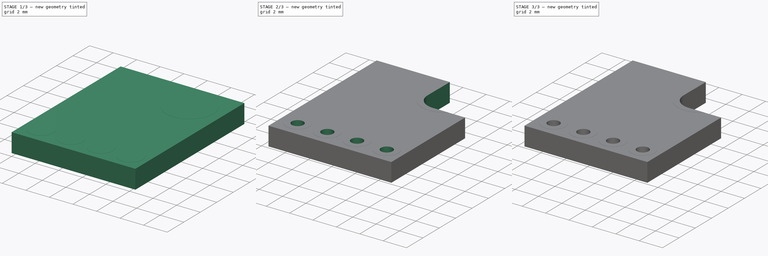
[diagram: build sequence overview — one tinted view per stage of 3, left to right]
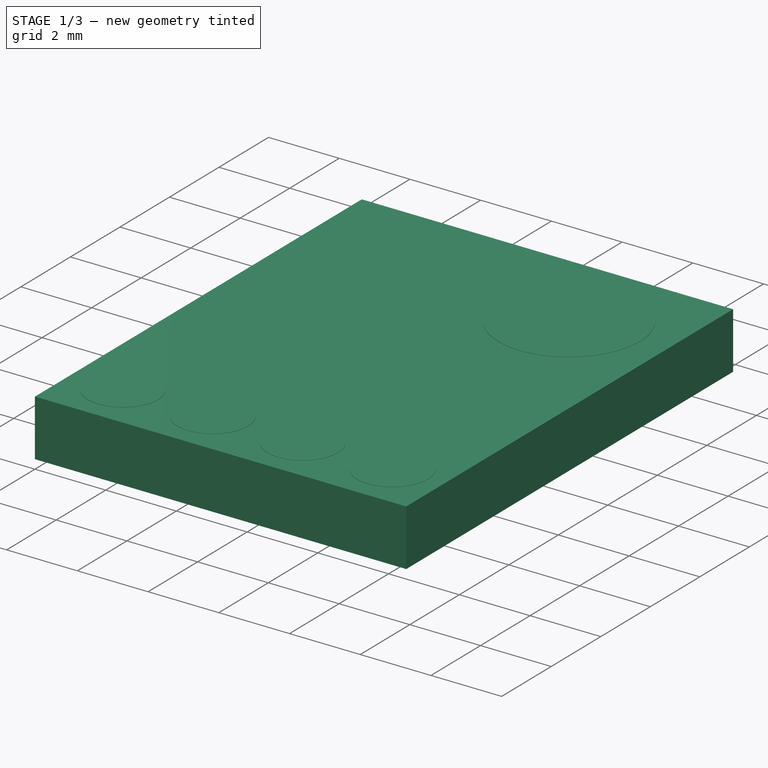
[diagram: stage 1 of 3 — iso view after this stage's code; geometry added in this stage tinted green]
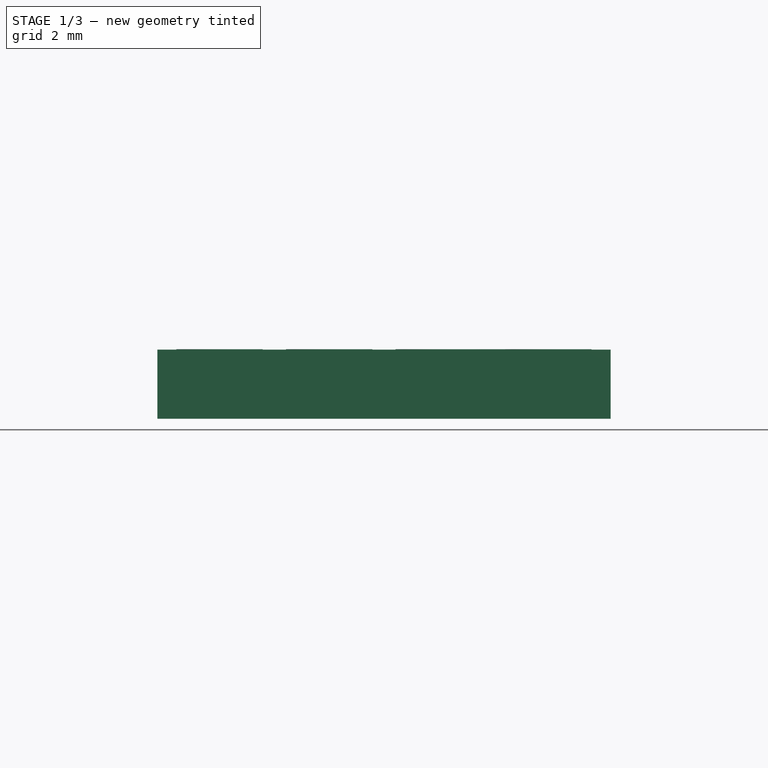
[diagram: stage 1 of 3 — front view after this stage's code; geometry added in this stage tinted green]
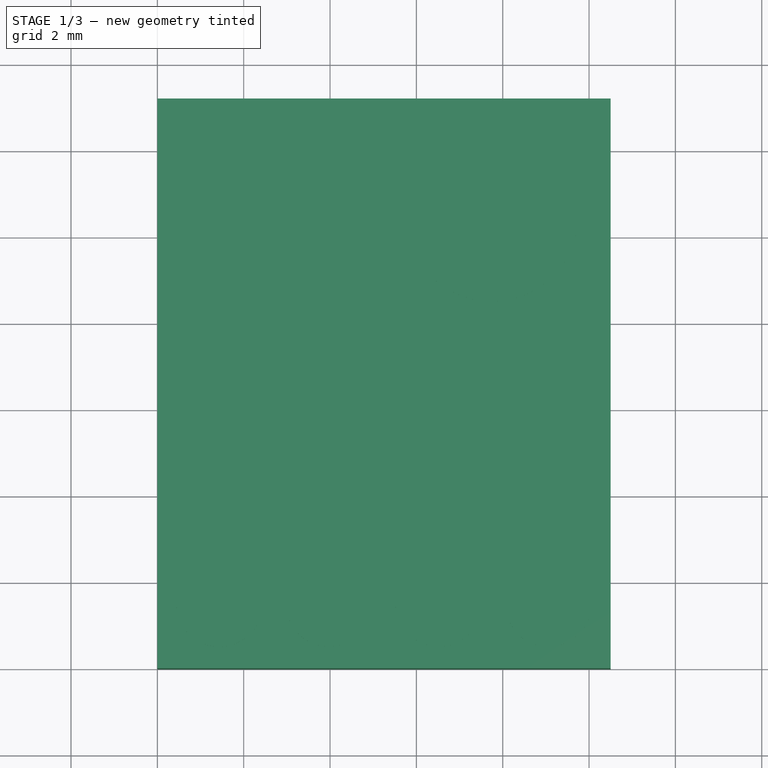
[diagram: stage 1 of 3 — top view after this stage's code; geometry added in this stage tinted green]
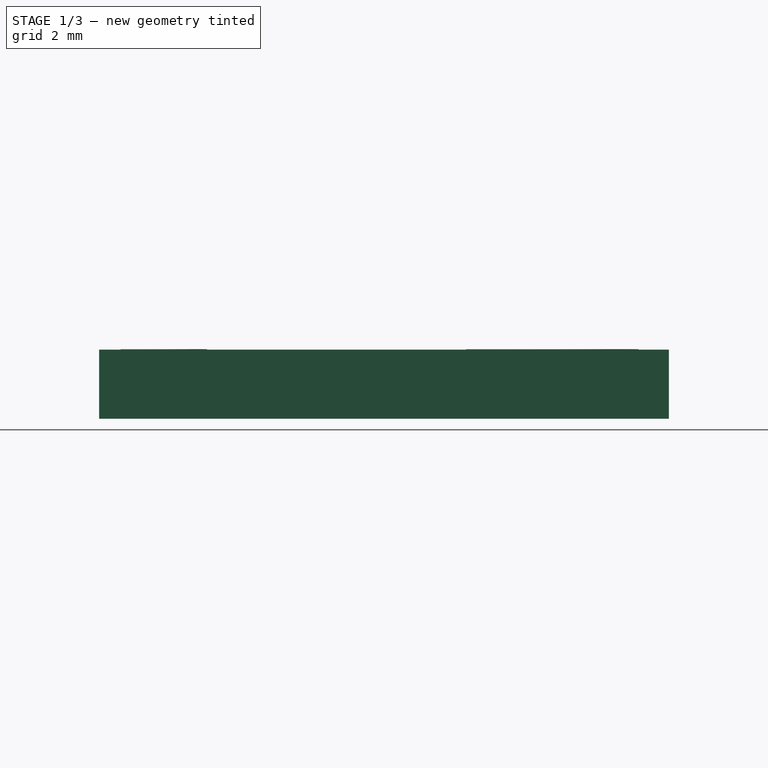
[diagram: stage 1 of 3 — right view after this stage's code; geometry added in this stage tinted green]
FCSTD DOCUMENT  (FreeCAD 0.15R4671 (Git))
Label: BME280_edit
License: All rights reserved
LicenseURL: http://en.wikipedia.org/wiki/All_rights_reserved
objects: Sketcher::SketchObject×3, PartDesign::Pad×2, PartDesign::Fillet×2, Part::Box×1, PartDesign::Pocket×1
note: 12 computed .brp shape members not serialized (recipe doc carries the construction recipe); baked Part::Feature solids carry a one-line shape summary decoded from their .brp

FEATURE [Part::Box] Box  label="Würfel"
  Height = 1.6
  Length = 10.5
  Width = 13.2
FEATURE [Sketcher::SketchObject] Sketch
  Placement = pos=(0,0,1.6) rot=(0,0,1;0rad)
  Support = -> Box [Face6]
  sketch-geometry (5):
    g0: Circle CenterX=1.44 CenterY=1.5 CenterZ=0 NormalX=0 NormalY=0 NormalZ=1 Radius=1
    g1: Circle CenterX=3.98 CenterY=1.5 CenterZ=0 NormalX=0 NormalY=0 NormalZ=1 Radius=1
    g2: Circle CenterX=6.52 CenterY=1.5 CenterZ=0 NormalX=0 NormalY=0 NormalZ=1 Radius=1
    g3: Circle CenterX=9.06 CenterY=1.5 CenterZ=0 NormalX=0 NormalY=0 NormalZ=1 Radius=1
    g4: Circle CenterX=7.75 CenterY=10.5 CenterZ=0 NormalX=0 NormalY=0 NormalZ=1 Radius=2
  constraints (15):
    c: DistanceX(g0) = 1.44
    c: DistanceX(g0,g1) = 2.54
    c: DistanceX(g1,g2) = 2.54
    c: DistanceX(g2,g3) = 2.54
    c: DistanceY(g0) = 1.5
    c: DistanceY(g0,g1) = 0
    c: DistanceY(g1,g2) = 0
    c: DistanceY(g2,g3) = 0
    c: Radius(g0) = 1
    c: Equal(g0,g1)
    c: Equal(g1,g2)
    c: Equal(g2,g3)
    c: DistanceX(g4) = 7.75
    c: DistanceY(g4) = 10.5
    c: Radius(g4) = 2
FEATURE [PartDesign::Pad] Pad
  Length = 0.01
  Length2 = 100
  Sketch = -> Sketch
  Type = 0
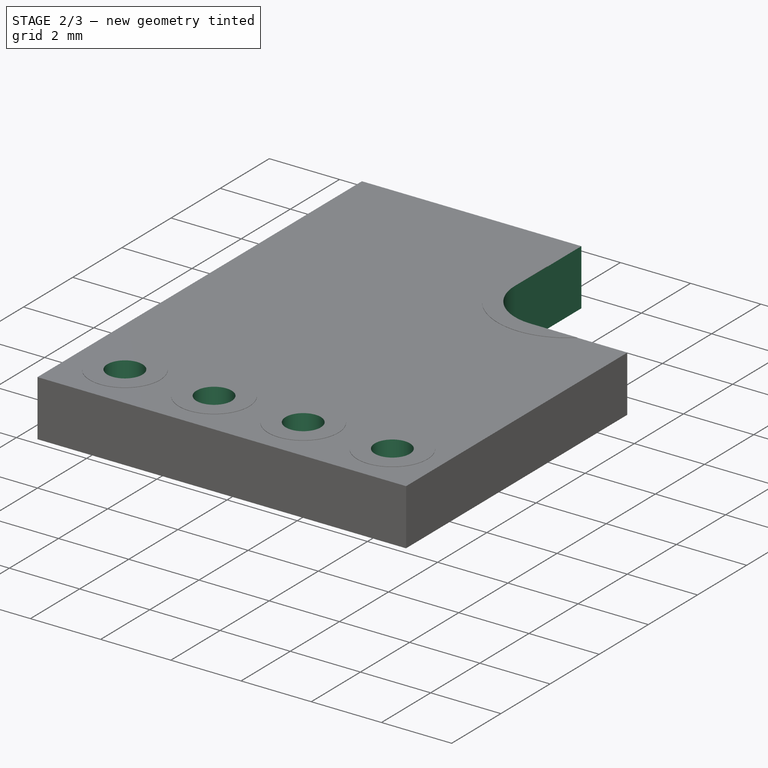
[diagram: stage 2 of 3 — iso view after this stage's code; geometry added in this stage tinted green]
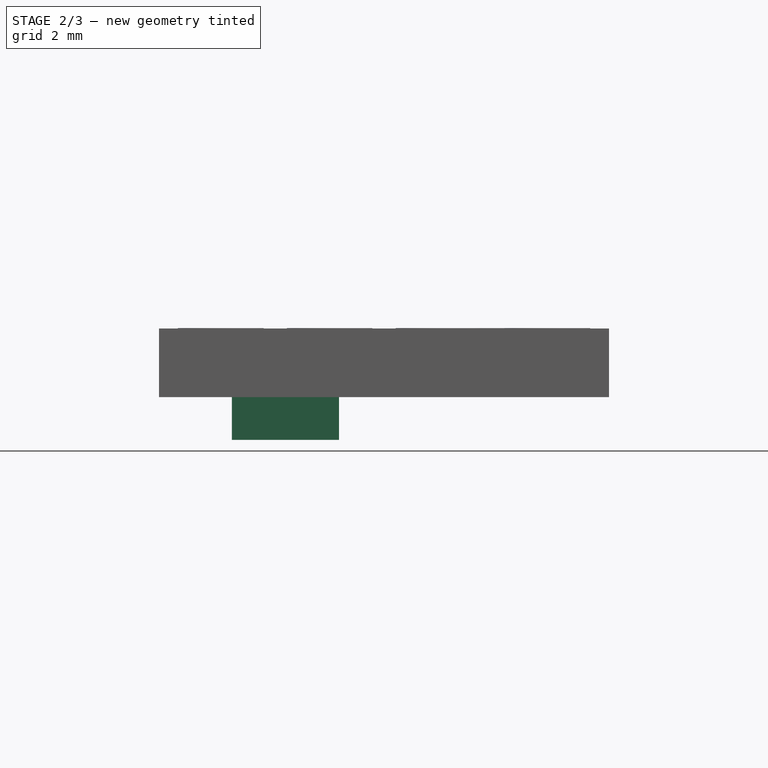
[diagram: stage 2 of 3 — front view after this stage's code; geometry added in this stage tinted green]
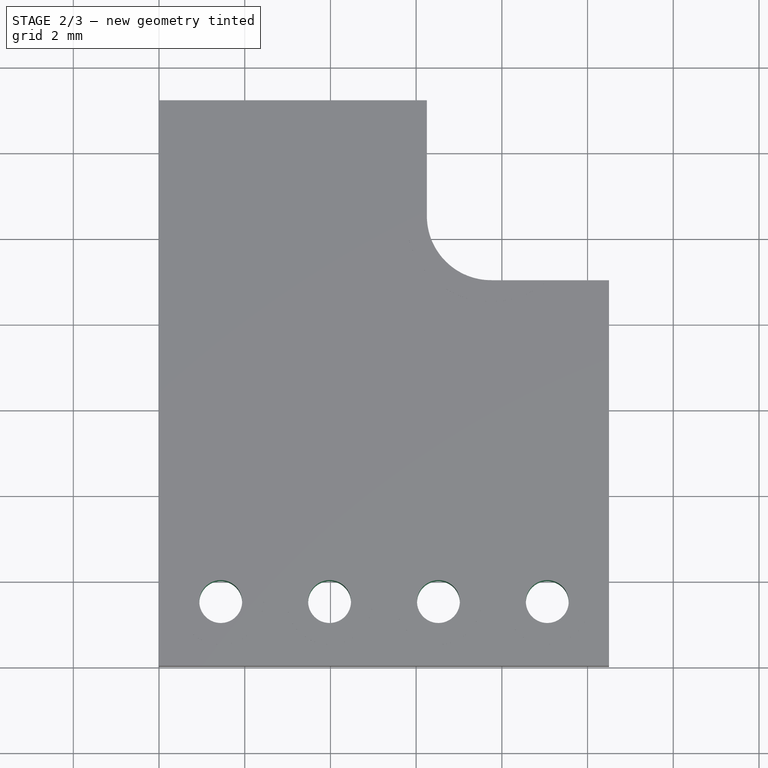
[diagram: stage 2 of 3 — top view after this stage's code; geometry added in this stage tinted green]
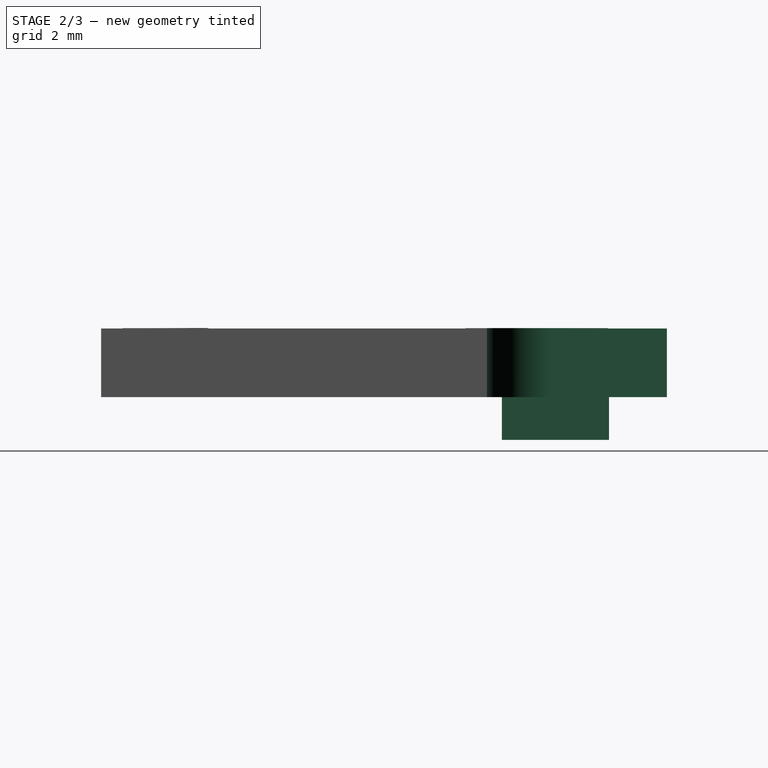
[diagram: stage 2 of 3 — right view after this stage's code; geometry added in this stage tinted green]
FEATURE [Sketcher::SketchObject] Sketch001
  ExternalGeometry = -> [Pad]
  Placement = pos=(0,0,1.61) rot=(0,0,1;0rad)
  Support = -> Pad [Face15]
  sketch-geometry (9):
    g0: Circle CenterX=1.44 CenterY=1.5 CenterZ=0 NormalX=0 NormalY=0 NormalZ=1 Radius=0.5
    g1: Circle CenterX=3.98 CenterY=1.5 CenterZ=0 NormalX=0 NormalY=0 NormalZ=1 Radius=0.5
    g2: Circle CenterX=6.52 CenterY=1.5 CenterZ=0 NormalX=0 NormalY=0 NormalZ=1 Radius=0.5
    g3: Circle CenterX=9.06 CenterY=1.5 CenterZ=0 NormalX=0 NormalY=0 NormalZ=1 Radius=0.5
    g4: ArcOfCircle CenterX=7.75 CenterY=10.5 CenterZ=0 NormalX=0 NormalY=0 NormalZ=1 Radius=1.5 StartAngle=3.14159 EndAngle=4.71239
    g5: LineSegment StartX=6.25 StartY=10.5 StartZ=0 EndX=6.25 EndY=13.2 EndZ=0
    g6: LineSegment StartX=7.75 StartY=9 StartZ=0 EndX=10.5 EndY=9 EndZ=0
    g7: LineSegment StartX=6.25 StartY=13.2 StartZ=0 EndX=10.5 EndY=13.2 EndZ=0
    g8: LineSegment StartX=10.5 StartY=9 StartZ=0 EndX=10.5 EndY=13.2 EndZ=0
  constraints (23):
    c: Coincident(g0,g-3)
    c: Coincident(g1,g-4)
    c: Coincident(g2,g-5)
    c: Coincident(g3,g-6)
    c: Radius(g0) = 0.5
    c: Equal(g0,g1)
    c: Equal(g1,g2)
    c: Equal(g2,g3)
    c: Coincident(g4,g-7)
    c: Radius(g4) = 1.5
    c: DistanceY(g4) = 9
    c: DistanceX(g4) = 6.25
    c: Coincident(g5,g4)
    c: Vertical(g5)
    c: Coincident(g6,g4)
    c: Horizontal(g6)
    c: DistanceX(g6) = 2.75
    c: DistanceY(g5) = 2.7
    c: Coincident(g7,g5)
    c: Horizontal(g7)
    c: Coincident(g8,g6)
    c: Coincident(g8,g7)
    c: Vertical(g8)
FEATURE [PartDesign::Pocket] Pocket
  Length = 5
  Sketch = -> Sketch001
  Type = 1
FEATURE [Sketcher::SketchObject] Sketch002
  Placement = pos=(0,0,0) rot=(1,0,0;3.14159rad)
  Support = -> Pocket [Face5]
  sketch-geometry (4):
    g0: LineSegment StartX=1.7 StartY=-11.85 StartZ=0 EndX=4.2 EndY=-11.85 EndZ=0
    g1: LineSegment StartX=4.2 StartY=-11.85 StartZ=0 EndX=4.2 EndY=-9.35 EndZ=0
    g2: LineSegment StartX=4.2 StartY=-9.35 StartZ=0 EndX=1.7 EndY=-9.35 EndZ=0
    g3: LineSegment StartX=1.7 StartY=-9.35 StartZ=0 EndX=1.7 EndY=-11.85 EndZ=0
  constraints (12):
    c: Coincident(g0,g1)
    c: Coincident(g1,g2)
    c: Coincident(g2,g3)
    c: Coincident(g3,g0)
    c: Horizontal(g0)
    c: Horizontal(g2)
    c: Vertical(g1)
    c: Vertical(g3)
    c: DistanceX(g2) = -2.5
    c: DistanceY(g1) = 2.5
    c: DistanceX(g2) = 1.7
    c: DistanceY(g2) = -9.35
FEATURE [PartDesign::Pad] Pad001
  Length = 1
  Length2 = 100
  Sketch = -> Sketch002
  Type = 0
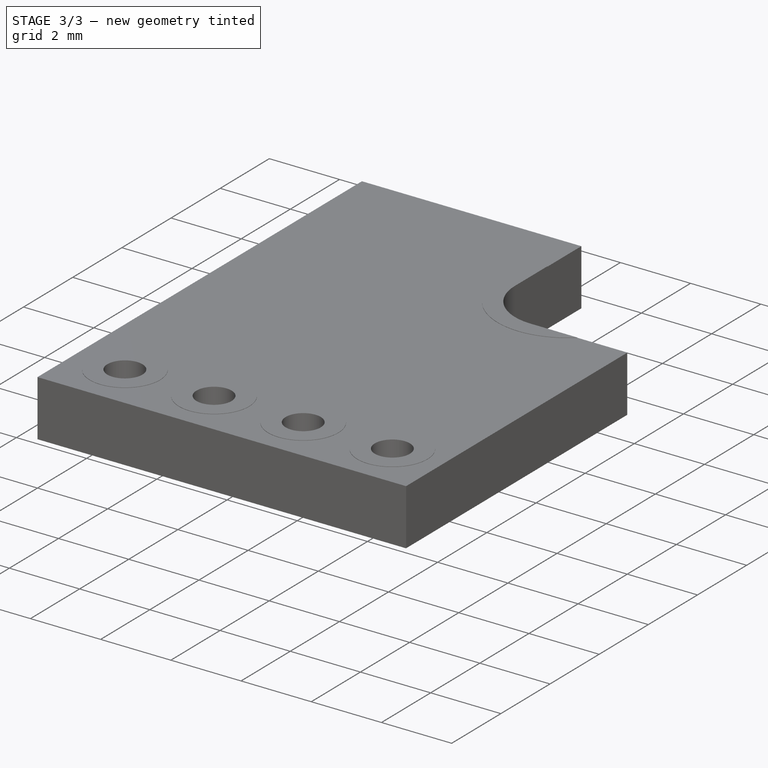
[diagram: stage 3 of 3 — iso view after this stage's code; geometry added in this stage tinted green]
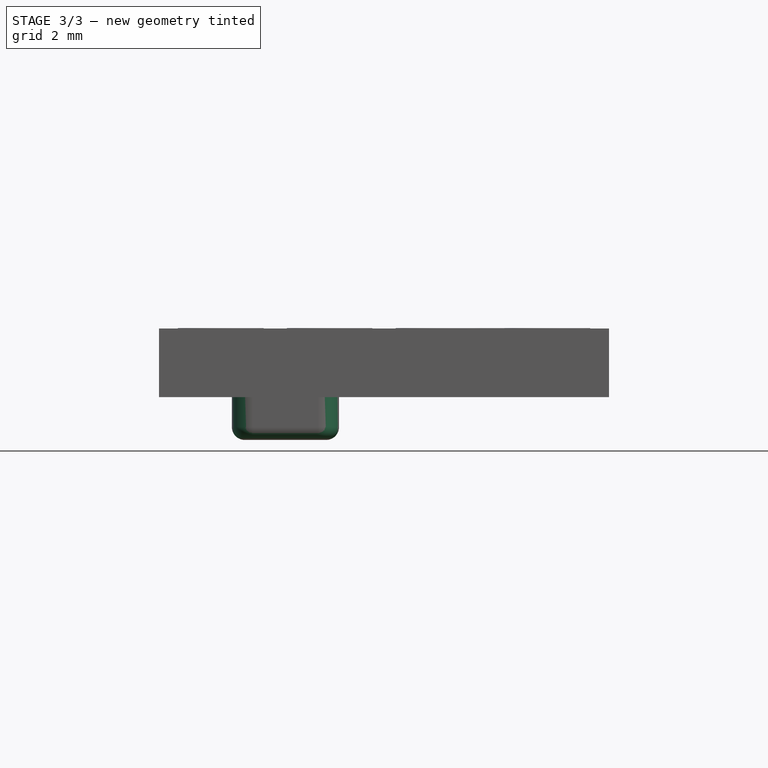
[diagram: stage 3 of 3 — front view after this stage's code; geometry added in this stage tinted green]
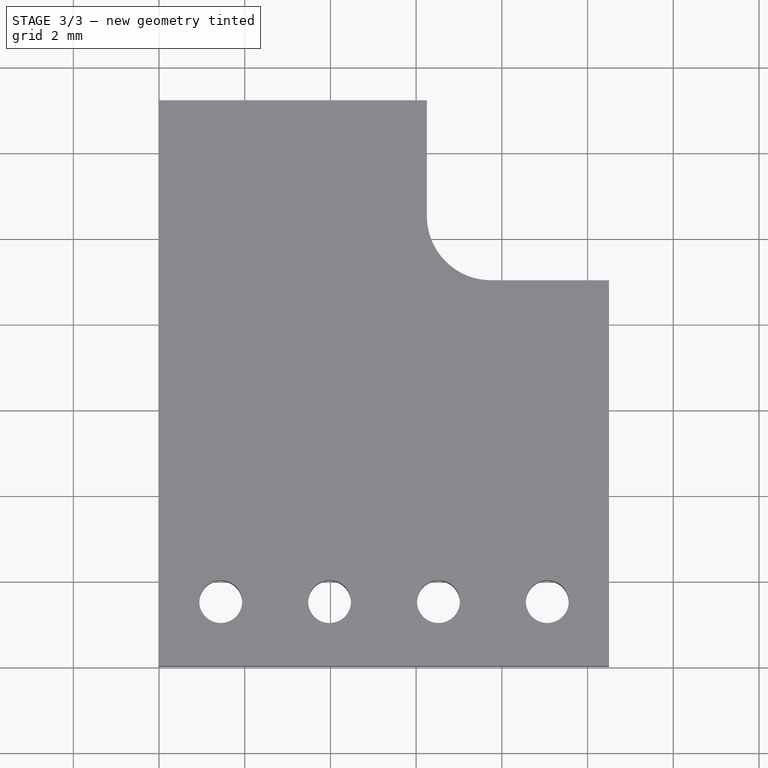
[diagram: stage 3 of 3 — top view after this stage's code; geometry added in this stage tinted green]
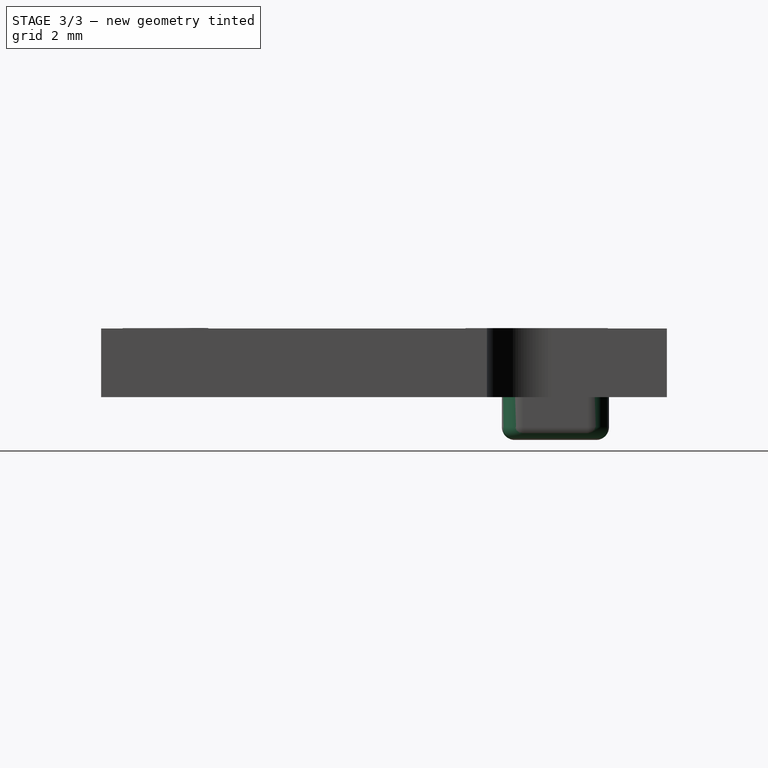
[diagram: stage 3 of 3 — right view after this stage's code; geometry added in this stage tinted green]
FEATURE [PartDesign::Fillet] Fillet
  Base = -> Pad001 [Edge58,Edge61,Edge59,Edge56]
  Radius = 0.5
FEATURE [PartDesign::Fillet] Fillet001
  Base = -> Fillet [Edge35,Edge28,Edge22,Edge30]
  Radius = 0.3
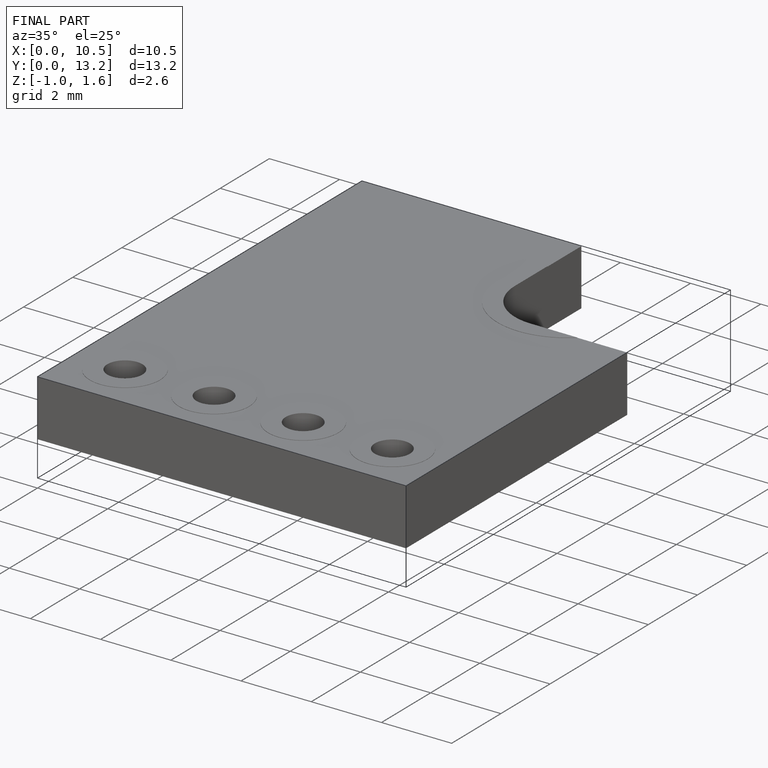
[diagram: finished part — iso view with bounding-box wireframe]
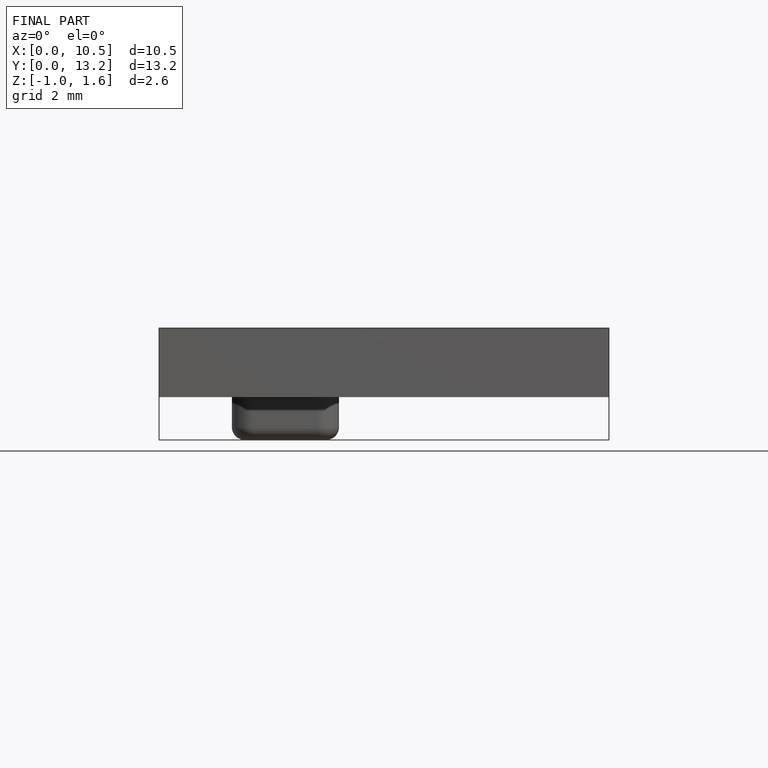
[diagram: finished part — front view with bounding-box wireframe]
